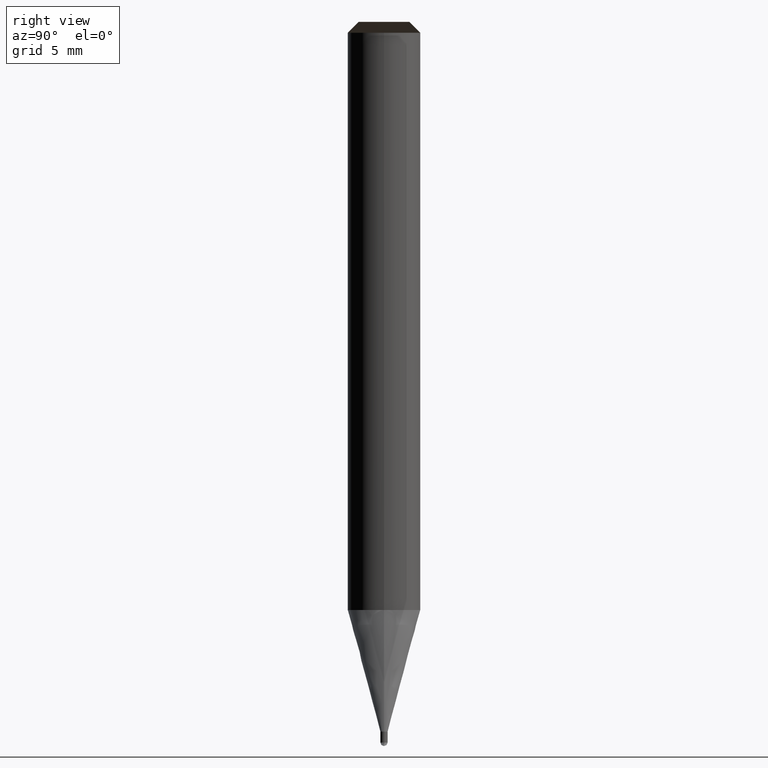
[diagram: clean part render]
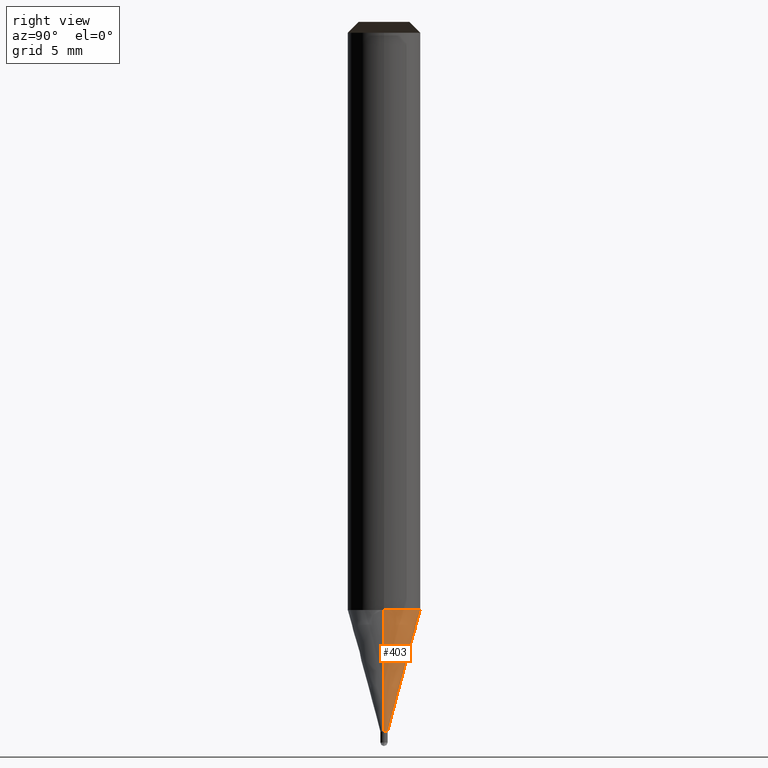
[diagram: same view with one face highlighted and labeled with its STEP entity id]
A machine part, right view. The second image highlights one B-rep face of the part: STEP entity #403.
In plain terms, the highlighted face is a freeform B-spline surface patch.
Its self-contained STEP definition (entity closure, byte-faithful):
#202=CARTESIAN_POINT('',(0.2,0.0,-6.717691453624));
#203=CARTESIAN_POINT('',(0.2,0.2,-6.717691453624));
#204=CARTESIAN_POINT('',(0.0,0.2,-6.717691453624));
#205=CARTESIAN_POINT('',(-0.2,0.2,-6.717691453624));
#206=CARTESIAN_POINT('',(-0.2,0.0,-6.717691453624));
#207=CARTESIAN_POINT('',(2.0,0.0,-0.0));
#208=CARTESIAN_POINT('',(2.0,2.0,-0.0));
#209=CARTESIAN_POINT('',(0.0,2.0,-0.0));
#210=CARTESIAN_POINT('',(-2.0,2.0,-0.0));
#211=CARTESIAN_POINT('',(-2.0,0.0,-0.0));
#384=(
BOUNDED_SURFACE()
B_SPLINE_SURFACE(1,2,(
(#202,#203,#204,#205,#206),
(#207,#208,#209,#210,#211)
), .UNSPECIFIED.,.F.,.F.,.F.)
B_SPLINE_SURFACE_WITH_KNOTS((2,2),(3,2,3),(
0.0,1.0),(
0.0,0.5,1.0), .UNSPECIFIED.)
GEOMETRIC_REPRESENTATION_ITEM()
RATIONAL_B_SPLINE_SURFACE(((1.0,0.707106781187,1.0,0.707106781187,1.0),
(1.0,0.707106781187,1.0,0.707106781187,1.0)
))
REPRESENTATION_ITEM('')
SURFACE()
);
#385=(
BOUNDED_CURVE()
B_SPLINE_CURVE(2,(#207,#208,#209,#210,#211),.UNSPECIFIED.,.F.,.F.)
B_SPLINE_CURVE_WITH_KNOTS((3,2,3),
(0.0,0.5,1.0),.UNSPECIFIED.)
CURVE()
GEOMETRIC_REPRESENTATION_ITEM()
RATIONAL_B_SPLINE_CURVE((1.0,0.707106781187,1.0,0.707106781187,1.0))
REPRESENTATION_ITEM('')
);
#386=(
BOUNDED_CURVE()
B_SPLINE_CURVE(1,(#211,#206),.UNSPECIFIED.,.F.,.F.)
B_SPLINE_CURVE_WITH_KNOTS((2,2),
(0.0,1.0),.UNSPECIFIED.)
CURVE()
GEOMETRIC_REPRESENTATION_ITEM()
RATIONAL_B_SPLINE_CURVE((1.0,1.0))
REPRESENTATION_ITEM('')
);
#387=(
BOUNDED_CURVE()
B_SPLINE_CURVE(2,(#206,#205,#204,#203,#202),.UNSPECIFIED.,.F.,.F.)
B_SPLINE_CURVE_WITH_KNOTS((3,2,3),
(0.0,0.5,1.0),.UNSPECIFIED.)
CURVE()
GEOMETRIC_REPRESENTATION_ITEM()
RATIONAL_B_SPLINE_CURVE((1.0,0.707106781187,1.0,0.707106781187,1.0))
REPRESENTATION_ITEM('')
);
#388=(
BOUNDED_CURVE()
B_SPLINE_CURVE(1,(#202,#207),.UNSPECIFIED.,.F.,.F.)
B_SPLINE_CURVE_WITH_KNOTS((2,2),
(0.0,1.0),.UNSPECIFIED.)
CURVE()
GEOMETRIC_REPRESENTATION_ITEM()
RATIONAL_B_SPLINE_CURVE((1.0,1.0))
REPRESENTATION_ITEM('')
);
#389=VERTEX_POINT('',#202);
#390=VERTEX_POINT('',#206);
#391=VERTEX_POINT('',#207);
#392=VERTEX_POINT('',#211);
#393=EDGE_CURVE('',#391,#392,#385,.T.);
#394=EDGE_CURVE('',#392,#390,#386,.T.);
#395=EDGE_CURVE('',#390,#389,#387,.T.);
#396=EDGE_CURVE('',#389,#391,#388,.T.);
#397=ORIENTED_EDGE('',*,*,#393,.T.);
#398=ORIENTED_EDGE('',*,*,#394,.T.);
#399=ORIENTED_EDGE('',*,*,#395,.T.);
#400=ORIENTED_EDGE('',*,*,#396,.T.);
#401=EDGE_LOOP('',(#397,#398,#399,#400));
#402=FACE_OUTER_BOUND('',#401,.T.);
#403=ADVANCED_FACE('',(#402),#384,.T.);